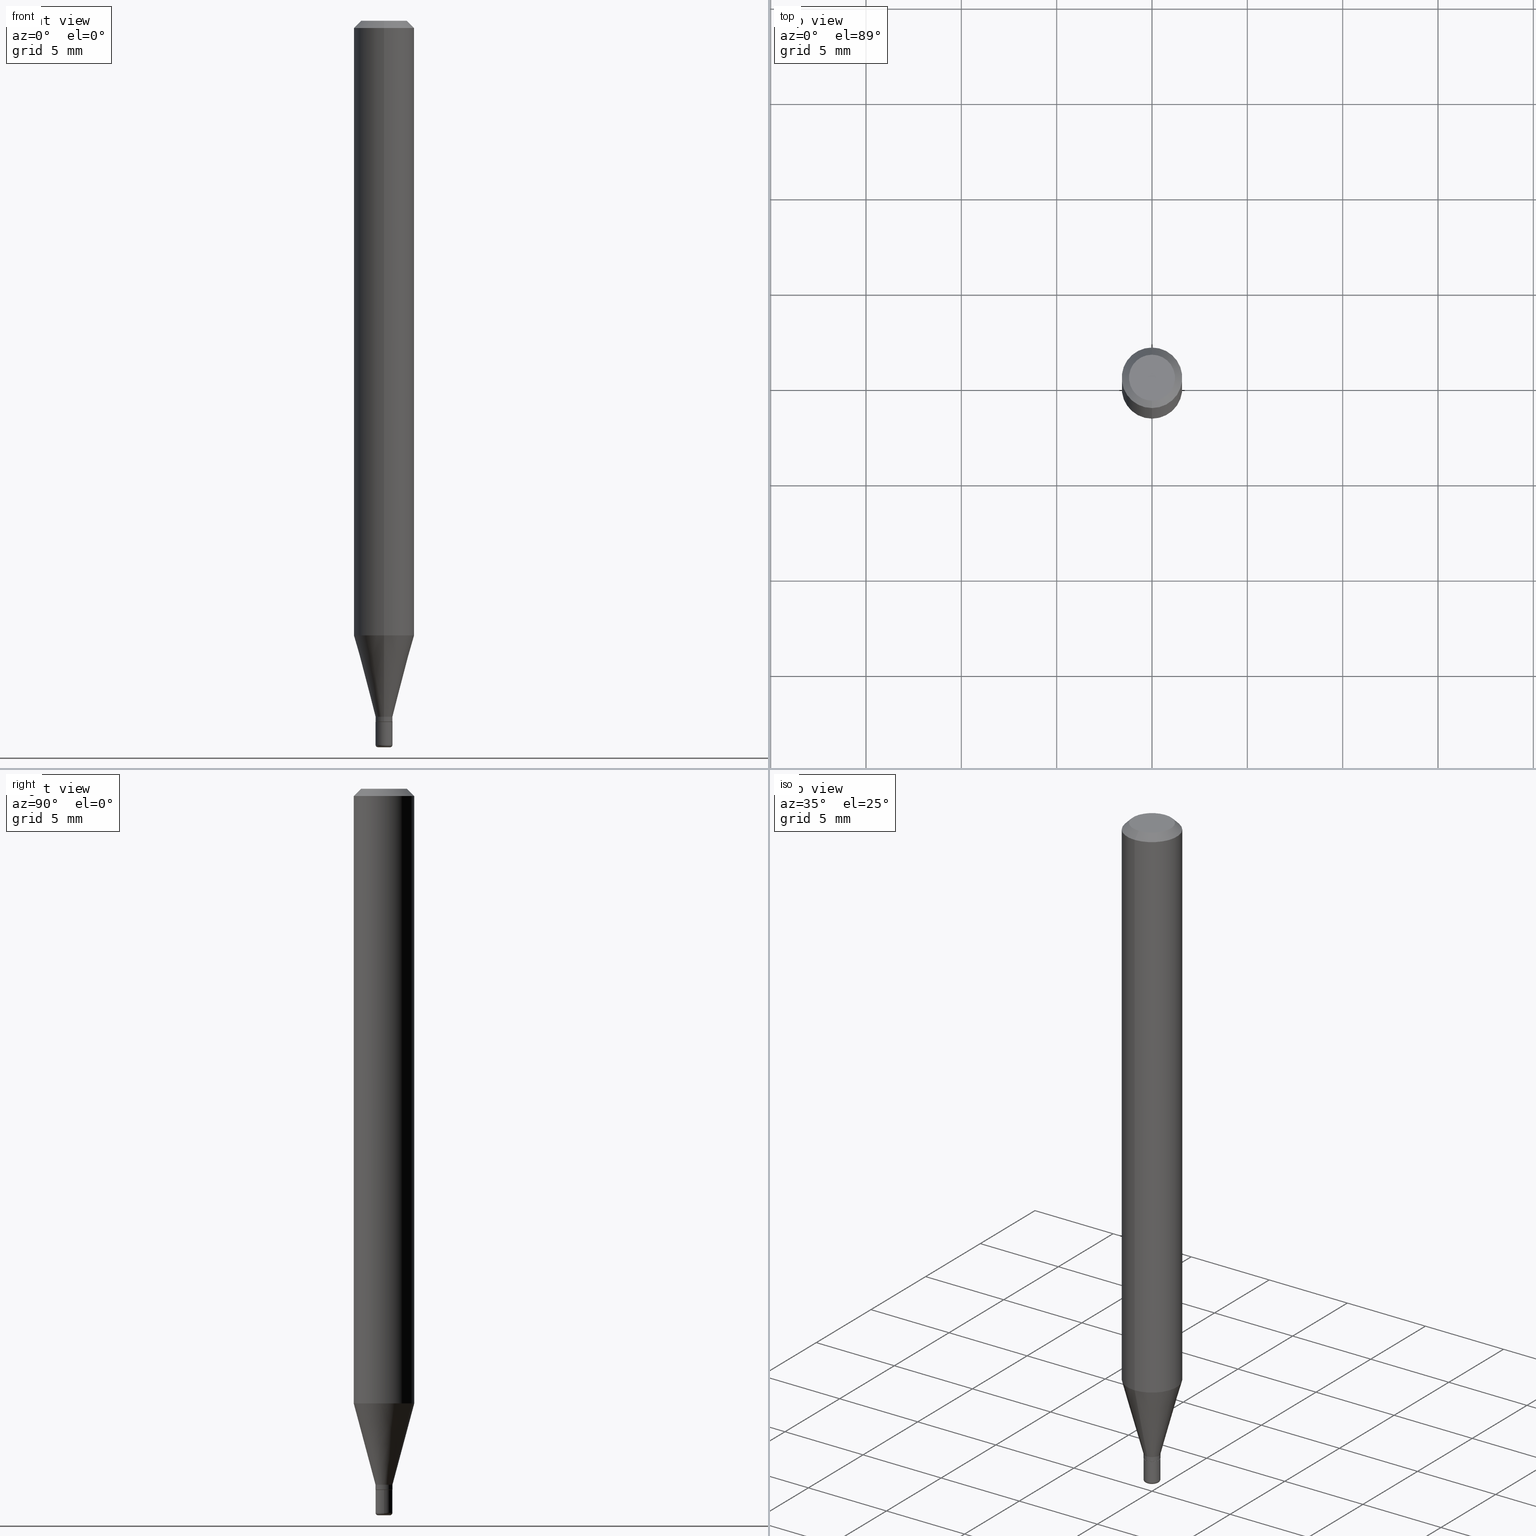
[diagram: canonical four-view strip — front | top / right | iso, engineering-drawing reading convention]
A machine part, canonical four-view strip (front | top / right | iso — engineering-drawing reading convention). The complete STEP part file that produces these views, byte-faithful:
ISO-10303-21;
HEADER;
FILE_DESCRIPTION (( 'STEP AP203' ),
    '1' );
FILE_NAME ('08994.STEP',
    '2024-02-29T21:07:08',
    ( '' ),
    ( '' ),
    'SwSTEP 2.0',
    'SolidWorks 2023',
    '' );
FILE_SCHEMA (( 'CONFIG_CONTROL_DESIGN' ));
ENDSEC;

DATA;
#1 = AXIS2_PLACEMENT_3D ( 'NONE', #284, #75, #194 ) ;
#2 = ORIENTED_EDGE ( 'NONE', *, *, #25, .T. ) ;
#3 = EDGE_CURVE ( 'NONE', #441, #167, #474, .T. ) ;
#4 = ORIENTED_EDGE ( 'NONE', *, *, #396, .F. ) ;
#5 =( CONVERSION_BASED_UNIT ( 'INCH', #364 ) LENGTH_UNIT ( ) NAMED_UNIT ( #6 ) );
#6 = DIMENSIONAL_EXPONENTS ( 1.000000000000000000, 0.000000000000000000, 0.000000000000000000, 0.000000000000000000, 0.000000000000000000, 0.000000000000000000, 0.000000000000000000 ) ;
#7 = EDGE_LOOP ( 'NONE', ( #378, #285, #254, #458 ) ) ;
#8 = AXIS2_PLACEMENT_3D ( 'NONE', #461, #422, #178 ) ;
#9 = AXIS2_PLACEMENT_3D ( 'NONE', #146, #258, #263 ) ;
#10 = SECURITY_CLASSIFICATION ( '', '', #399 ) ;
#11 = ADVANCED_FACE ( 'NONE', ( #188 ), #185, .F. ) ;
#12 = EDGE_LOOP ( 'NONE', ( #271, #253, #512, #489 ) ) ;
#13 = EDGE_LOOP ( 'NONE', ( #414, #287, #4, #199 ) ) ;
#14 = DIRECTION ( 'NONE',  ( 0.000000000000000000, 0.000000000000000000, 1.000000000000000000 ) ) ;
#15 = VERTEX_POINT ( 'NONE', #351 ) ;
#16 = APPROVAL ( #157, 'UNSPECIFIED' ) ;
#17 = DIRECTION ( 'NONE',  ( -6.982962677686266711E-15, -1.000000000000000000, 0.000000000000000000 ) ) ;
#18 = DIRECTION ( 'NONE',  ( -2.445372536736762504E-29, 3.491619202172534245E-15, 1.000000000000000000 ) ) ;
#19 = DIRECTION ( 'NONE',  ( -2.445372536736762504E-29, 3.491619202172534245E-15, 1.000000000000000000 ) ) ;
#20 = DIRECTION ( 'NONE',  ( 1.000000000000000000, -6.982962677686248567E-15, 0.000000000000000000 ) ) ;
#21 = CIRCLE ( 'NONE', #496, 0.01700000000000009143 ) ;
#22 = DIRECTION ( 'NONE',  ( -4.851104656540966641E-15, -0.7071067811865503483, -0.7071067811865446862 ) ) ;
#23 = FACE_OUTER_BOUND ( 'NONE', #89, .T. ) ;
#24 = CC_DESIGN_PERSON_AND_ORGANIZATION_ASSIGNMENT ( #195, #106, ( #497 ) ) ;
#25 = EDGE_CURVE ( 'NONE', #217, #164, #339, .T. ) ;
#26 = CALENDAR_DATE ( 2024, 29, 2 ) ;
#27 = CARTESIAN_POINT ( 'NONE',  ( 3.539676746926463991E-29, -5.054118795144743743E-15, -1.447500000000000009 ) ) ;
#28 = PERSON_AND_ORGANIZATION ( #328, #514 ) ;
#29 = DIRECTION ( 'NONE',  ( -2.445372536736762504E-29, 3.491619202172534245E-15, 1.000000000000000000 ) ) ;
#30 = CARTESIAN_POINT ( 'NONE',  ( 0.01250000000000000069, -5.307051635041582264E-15, -1.495000000000000107 ) ) ;
#31 = APPROVAL_DATE_TIME ( #477, #367 ) ;
#32 = DIRECTION ( 'NONE',  ( -6.982962677686265922E-15, -1.000000000000000000, 4.370956789862821150E-15 ) ) ;
#33 = ADVANCED_FACE ( 'NONE', ( #144 ), #313, .T. ) ;
#34 = DIRECTION ( 'NONE',  ( -6.982962677686266711E-15, -1.000000000000000000, 3.491481338843145583E-15 ) ) ;
#35 = APPROVAL_DATE_TIME ( #148, #123 ) ;
#36 = ORIENTED_EDGE ( 'NONE', *, *, #516, .T. ) ;
#37 = DIRECTION ( 'NONE',  ( -2.438088387897960049E-29, 3.491481338843145188E-15, 1.000000000000000000 ) ) ;
#38 = CARTESIAN_POINT ( 'NONE',  ( 0.000000000000000000, 0.000000000000000000, 0.000000000000000000 ) ) ;
#39 = ORIENTED_EDGE ( 'NONE', *, *, #257, .T. ) ;
#40 = AXIS2_PLACEMENT_3D ( 'NONE', #52, #55, #139 ) ;
#41 = AXIS2_PLACEMENT_3D ( 'NONE', #147, #426, #98 ) ;
#42 = CIRCLE ( 'NONE', #47, 0.04750000000000000749 ) ;
#43 = ORIENTED_EDGE ( 'NONE', *, *, #348, .T. ) ;
#44 = LOCAL_TIME ( 16, 7, 8.000000000000000000, #115 ) ;
#45 = ORIENTED_EDGE ( 'NONE', *, *, #78, .T. ) ;
#46 = ORIENTED_EDGE ( 'NONE', *, *, #228, .F. ) ;
#47 = AXIS2_PLACEMENT_3D ( 'NONE', #407, #402, #270 ) ;
#48 = VERTEX_POINT ( 'NONE', #467 ) ;
#49 = ORIENTED_EDGE ( 'NONE', *, *, #136, .F. ) ;
#50 = EDGE_CURVE ( 'NONE', #217, #48, #411, .T. ) ;
#51 = CARTESIAN_POINT ( 'NONE',  ( 4.440892098500625669E-16, 0.06250000000000000000, -2.182262001357833903E-16 ) ) ;
#52 = CARTESIAN_POINT ( 'NONE',  ( -6.680546193665781119E-45, 9.538801561062534046E-31, 2.731913478745722715E-16 ) ) ;
#53 = CARTESIAN_POINT ( 'NONE',  ( 3.668058805105071256E-31, -5.237428803258697805E-17, -0.01499999999999970281 ) ) ;
#54 = CC_DESIGN_SECURITY_CLASSIFICATION ( #10, ( #412 ) ) ;
#55 = DIRECTION ( 'NONE',  ( -2.445372536736762504E-29, 3.491619202172534245E-15, 1.000000000000000000 ) ) ;
#56 = CARTESIAN_POINT ( 'NONE',  ( -0.01250000000000000069, -5.130946759600490933E-15, -1.495000000000000107 ) ) ;
#57 = DIRECTION ( 'NONE',  ( -6.982962677686266711E-15, -1.000000000000000000, 0.000000000000000000 ) ) ;
#58 = ADVANCED_FACE ( 'NONE', ( #386 ), #74, .T. ) ;
#59 = DIRECTION ( 'NONE',  ( -2.445372536736762504E-29, 3.491619202172534245E-15, 1.000000000000000000 ) ) ;
#60 = COORDINATED_UNIVERSAL_TIME_OFFSET ( 5, 0, .BEHIND. ) ;
#61 = AXIS2_PLACEMENT_3D ( 'NONE', #143, #460, #57 ) ;
#62 = FACE_OUTER_BOUND ( 'NONE', #7, .T. ) ;
#63 = PRODUCT ( '08994', '08994', '', ( #306 ) ) ;
#64 = CARTESIAN_POINT ( 'NONE',  ( 3.840629472727447874E-16, 0.04750000000000000749, 1.073394357713768884E-16 ) ) ;
#65 = COORDINATED_UNIVERSAL_TIME_OFFSET ( 5, 0, .BEHIND. ) ;
#66 = CARTESIAN_POINT ( 'NONE',  ( 1.243449787580181607E-16, 0.01750000000000009187, -6.110333603801966434E-17 ) ) ;
#67 = CARTESIAN_POINT ( 'NONE',  ( 0.000000000000000000, 0.000000000000000000, 0.000000000000000000 ) ) ;
#68 = PERSON_AND_ORGANIZATION ( #328, #514 ) ;
#69 = ORIENTED_EDGE ( 'NONE', *, *, #81, .F. ) ;
#70 = FACE_OUTER_BOUND ( 'NONE', #116, .T. ) ;
#71 = DIRECTION ( 'NONE',  ( 1.000000000000000000, -6.982962677686288010E-15, 0.000000000000000000 ) ) ;
#72 = DATE_TIME_ROLE ( 'creation_date' ) ;
#73 = CARTESIAN_POINT ( 'NONE',  ( 3.103318880516645580E-29, -4.431066281678338175E-15, -1.269057713659401232 ) ) ;
#74 = CONICAL_SURFACE ( 'NONE', #346, 0.01700000000000009143, 0.7853981633975486432 ) ;
#75 = DIRECTION ( 'NONE',  ( -2.445468806185136597E-29, 3.491481338843145583E-15, 1.000000000000000000 ) ) ;
#76 = ORIENTED_EDGE ( 'NONE', *, *, #482, .F. ) ;
#77 = LOCAL_TIME ( 16, 7, 8.000000000000000000, #444 ) ;
#78 = EDGE_CURVE ( 'NONE', #167, #450, #429, .T. ) ;
#79 = AXIS2_PLACEMENT_3D ( 'NONE', #499, #304, #468 ) ;
#80 = CIRCLE ( 'NONE', #95, 0.01750000000000009187 ) ;
#81 = EDGE_CURVE ( 'NONE', #170, #379, #250, .T. ) ;
#82 = DIRECTION ( 'NONE',  ( -2.445468806185136597E-29, 3.491481338843145583E-15, 1.000000000000000000 ) ) ;
#83 = VERTEX_POINT ( 'NONE', #181 ) ;
#84 = CC_DESIGN_DATE_AND_TIME_ASSIGNMENT ( #275, #355, ( #10 ) ) ;
#85 = EDGE_CURVE ( 'NONE', #86, #15, #21, .T. ) ;
#86 = VERTEX_POINT ( 'NONE', #343 ) ;
#87 =( GEOMETRIC_REPRESENTATION_CONTEXT ( 3 ) GLOBAL_UNCERTAINTY_ASSIGNED_CONTEXT ( ( #486 ) ) GLOBAL_UNIT_ASSIGNED_CONTEXT ( ( #5, #314, #322 ) ) REPRESENTATION_CONTEXT ( 'NONE', 'WORKASPACE' ) );
#88 = ORIENTED_EDGE ( 'NONE', *, *, #251, .F. ) ;
#89 = EDGE_LOOP ( 'NONE', ( #173, #448, #39, #49 ) ) ;
#90 = CARTESIAN_POINT ( 'NONE',  ( 3.582686580359767159E-29, -5.359686688179454114E-15, -1.500000000000000444 ) ) ;
#91 = CIRCLE ( 'NONE', #410, 0.01700000000000009143 ) ;
#92 = ORIENTED_EDGE ( 'NONE', *, *, #409, .T. ) ;
#93 = AXIS2_PLACEMENT_3D ( 'NONE', #156, #235, #436 ) ;
#94 = VERTEX_POINT ( 'NONE', #64 ) ;
#95 = AXIS2_PLACEMENT_3D ( 'NONE', #466, #104, #260 ) ;
#96 = DESIGN_CONTEXT ( 'detailed design', #286, 'design' ) ;
#97 = EDGE_CURVE ( 'NONE', #246, #167, #266, .T. ) ;
#98 = DIRECTION ( 'NONE',  ( -6.982962677686265922E-15, -1.000000000000000000, 4.370956789862821150E-15 ) ) ;
#99 = FACE_OUTER_BOUND ( 'NONE', #359, .T. ) ;
#100 = CIRCLE ( 'NONE', #315, 0.01750000000000018208 ) ;
#101 = FACE_OUTER_BOUND ( 'NONE', #12, .T. ) ;
#102 = CIRCLE ( 'NONE', #79, 0.01750000000000009187 ) ;
#103 = ADVANCED_FACE ( 'NONE', ( #23 ), #105, .T. ) ;
#104 = DIRECTION ( 'NONE',  ( -2.445372536736762504E-29, 3.491619202172534245E-15, 1.000000000000000000 ) ) ;
#105 = CYLINDRICAL_SURFACE ( 'NONE', #281, 0.06250000000000000000 ) ;
#106 = PERSON_AND_ORGANIZATION_ROLE ( 'creator' ) ;
#107 = LINE ( 'NONE', #334, #201 ) ;
#108 = CARTESIAN_POINT ( 'NONE',  ( 3.539676746926463991E-29, -5.054118795144743743E-15, -1.447500000000000009 ) ) ;
#109 = APPROVAL_DATE_TIME ( #239, #16 ) ;
#110 = AXIS2_PLACEMENT_3D ( 'NONE', #428, #345, #234 ) ;
#111 = LINE ( 'NONE', #311, #495 ) ;
#112 = FACE_OUTER_BOUND ( 'NONE', #336, .T. ) ;
#113 = PERSON_AND_ORGANIZATION_ROLE ( 'creator' ) ;
#114 = CARTESIAN_POINT ( 'NONE',  ( 3.539676746926463991E-29, -5.054118795144743743E-15, -1.447500000000000009 ) ) ;
#115 = COORDINATED_UNIVERSAL_TIME_OFFSET ( 5, 0, .BEHIND. ) ;
#116 = EDGE_LOOP ( 'NONE', ( #446, #92, #125, #76 ) ) ;
#117 = CARTESIAN_POINT ( 'NONE',  ( 3.655975865246779683E-29, -5.219764601570503930E-15, -1.495000000000000329 ) ) ;
#118 = DIRECTION ( 'NONE',  ( -2.445468806185136597E-29, 3.491481338843145583E-15, 1.000000000000000000 ) ) ;
#119 = PERSON_AND_ORGANIZATION ( #328, #514 ) ;
#120 = CIRCLE ( 'NONE', #169, 0.01750000000000018208 ) ;
#121 = CARTESIAN_POINT ( 'NONE',  ( 3.655975865246779683E-29, -5.219764601570503930E-15, -1.495000000000000329 ) ) ;
#122 = ORIENTED_EDGE ( 'NONE', *, *, #85, .F. ) ;
#123 = APPROVAL ( #229, 'UNSPECIFIED' ) ;
#124 = EDGE_CURVE ( 'NONE', #94, #450, #227, .T. ) ;
#125 = ORIENTED_EDGE ( 'NONE', *, *, #473, .T. ) ;
#126 = CC_DESIGN_DATE_AND_TIME_ASSIGNMENT ( #505, #72, ( #497 ) ) ;
#127 = ADVANCED_FACE ( 'NONE', ( #465 ), #475, .F. ) ;
#128 = ORIENTED_EDGE ( 'NONE', *, *, #264, .T. ) ;
#129 = CARTESIAN_POINT ( 'NONE',  ( -1.222018468594751745E-16, -0.01750000000000511216, -1.437000000000000277 ) ) ;
#130 = CC_DESIGN_APPROVAL ( #123, ( #412 ) ) ;
#131 = ORIENTED_EDGE ( 'NONE', *, *, #209, .T. ) ;
#132 = FACE_OUTER_BOUND ( 'NONE', #327, .T. ) ;
#133 = ORIENTED_EDGE ( 'NONE', *, *, #165, .F. ) ;
#134 = CONICAL_SURFACE ( 'NONE', #241, 0.01700000000000009143, 0.7853981633975486432 ) ;
#135 = ORIENTED_EDGE ( 'NONE', *, *, #136, .T. ) ;
#136 = EDGE_CURVE ( 'NONE', #450, #248, #324, .T. ) ;
#137 = DIRECTION ( 'NONE',  ( 2.445372536736761943E-29, -3.491619202172534245E-15, -1.000000000000000000 ) ) ;
#138 = FACE_OUTER_BOUND ( 'NONE', #236, .T. ) ;
#139 = DIRECTION ( 'NONE',  ( -6.982962677686265133E-15, -1.000000000000000000, 3.491619202172534245E-15 ) ) ;
#140 = CARTESIAN_POINT ( 'NONE',  ( 4.364351673553919652E-16, 0.06249999999999995143, -0.01499999999999992138 ) ) ;
#141 = ADVANCED_FACE ( 'NONE', ( #476 ), #268, .T. ) ;
#142 = AXIS2_PLACEMENT_3D ( 'NONE', #300, #421, #222 ) ;
#143 = CARTESIAN_POINT ( 'NONE',  ( 3.538454060658095632E-29, -5.052372985543657643E-15, -1.447000000000000064 ) ) ;
#144 = FACE_OUTER_BOUND ( 'NONE', #206, .T. ) ;
#145 = COORDINATED_UNIVERSAL_TIME_OFFSET ( 5, 0, .BEHIND. ) ;
#146 = CARTESIAN_POINT ( 'NONE',  ( 3.668058805105071256E-31, -5.237428803258697805E-17, -0.01499999999999970281 ) ) ;
#147 = CARTESIAN_POINT ( 'NONE',  ( 3.103318880516645580E-29, -4.431066281678338175E-15, -1.269057713659401232 ) ) ;
#148 = DATE_AND_TIME ( #349, #384 ) ;
#149 = ADVANCED_FACE ( 'NONE', ( #112 ), #510, .T. ) ;
#150 = LINE ( 'NONE', #298, #226 ) ;
#151 = EDGE_CURVE ( 'NONE', #15, #86, #91, .T. ) ;
#152 = DIRECTION ( 'NONE',  ( -2.445468806185136597E-29, 3.491481338843145583E-15, 1.000000000000000000 ) ) ;
#153 = AXIS2_PLACEMENT_3D ( 'NONE', #53, #223, #255 ) ;
#154 = CARTESIAN_POINT ( 'NONE',  ( -1.187103655206317729E-16, -0.01700000000000514641, -1.447500000000000009 ) ) ;
#155 = LOCAL_TIME ( 16, 7, 8.000000000000000000, #65 ) ;
#156 = CARTESIAN_POINT ( 'NONE',  ( 1.222018468595450626E-16, 0.01749999999999494668, -1.447500000000000009 ) ) ;
#157 = APPROVAL_STATUS ( 'not_yet_approved' ) ;
#158 = EDGE_LOOP ( 'NONE', ( #128, #488, #176, #247 ) ) ;
#159 = DIRECTION ( 'NONE',  ( -4.937700262165042658E-15, -0.7071067811866159625, 0.7071067811864789610 ) ) ;
#160 = DIRECTION ( 'NONE',  ( -2.445468806185136877E-29, 3.491481338843145188E-15, 1.000000000000000000 ) ) ;
#161 = PERSON_AND_ORGANIZATION ( #328, #514 ) ;
#162 = LINE ( 'NONE', #154, #197 ) ;
#163 = CARTESIAN_POINT ( 'NONE',  ( -0.01250000000000000243, -5.121911894553596325E-15, -1.500000000000000444 ) ) ;
#164 = VERTEX_POINT ( 'NONE', #273 ) ;
#165 = EDGE_CURVE ( 'NONE', #94, #210, #42, .T. ) ;
#166 = EDGE_CURVE ( 'NONE', #48, #452, #120, .T. ) ;
#167 = VERTEX_POINT ( 'NONE', #398 ) ;
#168 = AXIS2_PLACEMENT_3D ( 'NONE', #341, #137, #299 ) ;
#169 = AXIS2_PLACEMENT_3D ( 'NONE', #121, #118, #71 ) ;
#170 = VERTEX_POINT ( 'NONE', #358 ) ;
#171 = CARTESIAN_POINT ( 'NONE',  ( 0.01750000000000018208, -5.341966448430015491E-15, -1.495000000000000329 ) ) ;
#172 = APPROVAL_PERSON_ORGANIZATION ( #68, #367, #440 ) ;
#173 = ORIENTED_EDGE ( 'NONE', *, *, #78, .F. ) ;
#174 = ORIENTED_EDGE ( 'NONE', *, *, #251, .T. ) ;
#175 = ADVANCED_FACE ( 'NONE', ( #242 ), #365, .T. ) ;
#176 = ORIENTED_EDGE ( 'NONE', *, *, #493, .F. ) ;
#177 = AXIS2_PLACEMENT_3D ( 'NONE', #387, #19, #183 ) ;
#178 = DIRECTION ( 'NONE',  ( 1.000000000000000000, -6.982962677686292743E-15, 0.000000000000000000 ) ) ;
#179 = DIRECTION ( 'NONE',  ( -6.982962677686265133E-15, -1.000000000000000000, 0.000000000000000000 ) ) ;
#180 = PRODUCT_DEFINITION_SHAPE ( 'NONE', 'NONE',  #497 ) ;
#181 = CARTESIAN_POINT ( 'NONE',  ( -1.222018468594751745E-16, -0.01750000000000511216, -1.437000000000000277 ) ) ;
#182 = AXIS2_PLACEMENT_3D ( 'NONE', #73, #513, #32 ) ;
#183 = DIRECTION ( 'NONE',  ( -6.982962677686266711E-15, -1.000000000000000000, 0.000000000000000000 ) ) ;
#184 = AXIS2_PLACEMENT_3D ( 'NONE', #393, #498, #435 ) ;
#185 = PLANE ( 'NONE',  #168 ) ;
#186 = APPLICATION_PROTOCOL_DEFINITION ( 'international standard', 'config_control_design', 1994, #286 ) ;
#187 = CYLINDRICAL_SURFACE ( 'NONE', #338, 0.01750000000000009187 ) ;
#188 = FACE_OUTER_BOUND ( 'NONE', #451, .T. ) ;
#189 = SHAPE_DEFINITION_REPRESENTATION ( #180, #362 ) ;
#190 = DIRECTION ( 'NONE',  ( -2.445468806185136597E-29, 3.491481338843145583E-15, 1.000000000000000000 ) ) ;
#191 = DIRECTION ( 'NONE',  ( 1.000000000000000000, -6.982962677686276177E-15, 0.000000000000000000 ) ) ;
#192 = PERSON_AND_ORGANIZATION_ROLE ( 'design_supplier' ) ;
#193 = CARTESIAN_POINT ( 'NONE',  ( -4.364351673553912750E-16, -0.06250000000000005551, -0.01499999999999948597 ) ) ;
#194 = DIRECTION ( 'NONE',  ( 1.000000000000000000, -6.982962677686288799E-15, 4.883557194083120748E-29 ) ) ;
#195 = PERSON_AND_ORGANIZATION ( #328, #514 ) ;
#196 = CARTESIAN_POINT ( 'NONE',  ( 1.207922650792530567E-16, 0.01699999999999503644, -1.447500000000000009 ) ) ;
#197 = VECTOR ( 'NONE', #159, 39.37007874015748854 ) ;
#198 = CARTESIAN_POINT ( 'NONE',  ( -1.222018468594753224E-16, -0.01750000000000520237, -1.447000000000000064 ) ) ;
#199 = ORIENTED_EDGE ( 'NONE', *, *, #424, .F. ) ;
#200 =( LENGTH_UNIT ( ) NAMED_UNIT ( * ) SI_UNIT ( $, .METRE. ) );
#201 = VECTOR ( 'NONE', #376, 39.37007874015748143 ) ;
#202 = DIRECTION ( 'NONE',  ( 1.000000000000000000, -6.982962677686266711E-15, 4.876176775795935232E-29 ) ) ;
#203 = ADVANCED_FACE ( 'NONE', ( #238 ), #479, .T. ) ;
#204 = ORIENTED_EDGE ( 'NONE', *, *, #326, .F. ) ;
#205 = DIRECTION ( 'NONE',  ( -6.982962677686265133E-15, -1.000000000000000000, 0.000000000000000000 ) ) ;
#206 = EDGE_LOOP ( 'NONE', ( #88, #240, #43, #518 ) ) ;
#207 = AXIS2_PLACEMENT_3D ( 'NONE', #38, #243, #508 ) ;
#208 = VECTOR ( 'NONE', #432, 39.37007874015748854 ) ;
#209 = EDGE_CURVE ( 'NONE', #164, #452, #340, .T. ) ;
#210 = VERTEX_POINT ( 'NONE', #484 ) ;
#211 = CARTESIAN_POINT ( 'NONE',  ( 4.440892098500937762E-16, 0.06249999999999993755, -0.01499999999999992138 ) ) ;
#212 = VERTEX_POINT ( 'NONE', #198 ) ;
#213 = AXIS2_PLACEMENT_3D ( 'NONE', #30, #34, #191 ) ;
#214 = ORIENTED_EDGE ( 'NONE', *, *, #151, .T. ) ;
#215 = DIRECTION ( 'NONE',  ( -2.445468806185136597E-29, 3.491481338843145583E-15, 1.000000000000000000 ) ) ;
#216 = EDGE_CURVE ( 'NONE', #48, #379, #323, .T. ) ;
#217 = VERTEX_POINT ( 'NONE', #163 ) ;
#218 = EDGE_LOOP ( 'NONE', ( #337, #214, #36, #317 ) ) ;
#219 = MANIFOLD_SOLID_BREP ( 'Body-Move/Copy2[1]', #403 ) ;
#220 = CARTESIAN_POINT ( 'NONE',  ( 0.000000000000000000, 0.000000000000000000, 0.000000000000000000 ) ) ;
#221 = ADVANCED_FACE ( 'NONE', ( #443 ), #430, .T. ) ;
#222 = DIRECTION ( 'NONE',  ( -6.982962677686266711E-15, -1.000000000000000000, 3.491619202172533851E-15 ) ) ;
#223 = DIRECTION ( 'NONE',  ( 2.445372536736762504E-29, -3.491619202172534245E-15, -1.000000000000000000 ) ) ;
#224 = DIRECTION ( 'NONE',  ( -2.445372536736761943E-29, 3.491619202172534245E-15, 1.000000000000000000 ) ) ;
#225 = DIRECTION ( 'NONE',  ( -2.445372536736762504E-29, 3.491619202172534245E-15, 1.000000000000000000 ) ) ;
#226 = VECTOR ( 'NONE', #385, 39.37007874015748143 ) ;
#227 = LINE ( 'NONE', #140, #252 ) ;
#228 = EDGE_CURVE ( 'NONE', #415, #246, #361, .T. ) ;
#229 = APPROVAL_STATUS ( 'not_yet_approved' ) ;
#230 = CIRCLE ( 'NONE', #184, 0.01750000000000000167 ) ;
#231 = DIRECTION ( 'NONE',  ( -2.445372536736762504E-29, 3.491619202172534245E-15, 1.000000000000000000 ) ) ;
#232 = EDGE_CURVE ( 'NONE', #210, #248, #111, .T. ) ;
#233 = PERSON_AND_ORGANIZATION ( #328, #514 ) ;
#234 = DIRECTION ( 'NONE',  ( -6.982962677686265922E-15, -1.000000000000000000, 3.483106191921935554E-15 ) ) ;
#235 = DIRECTION ( 'NONE',  ( 2.438088387897960049E-29, -3.491481338843145188E-15, -1.000000000000000000 ) ) ;
#236 = EDGE_LOOP ( 'NONE', ( #122, #437 ) ) ;
#237 = DIRECTION ( 'NONE',  ( -1.807323732225323828E-15, -0.2588190451025172978, 0.9659258262890690894 ) ) ;
#238 = FACE_OUTER_BOUND ( 'NONE', #478, .T. ) ;
#239 = DATE_AND_TIME ( #471, #44 ) ;
#240 = ORIENTED_EDGE ( 'NONE', *, *, #232, .T. ) ;
#241 = AXIS2_PLACEMENT_3D ( 'NONE', #27, #225, #179 ) ;
#242 = FACE_OUTER_BOUND ( 'NONE', #363, .T. ) ;
#243 = DIRECTION ( 'NONE',  ( -2.445468806185136597E-29, 3.491481338843145583E-15, 1.000000000000000000 ) ) ;
#244 = ORIENTED_EDGE ( 'NONE', *, *, #264, .F. ) ;
#245 = LOCAL_TIME ( 16, 7, 8.000000000000000000, #145 ) ;
#246 = VERTEX_POINT ( 'NONE', #507 ) ;
#247 = ORIENTED_EDGE ( 'NONE', *, *, #209, .F. ) ;
#248 = VERTEX_POINT ( 'NONE', #193 ) ;
#249 = DIRECTION ( 'NONE',  ( -2.445468806185136877E-29, 3.491481338843145188E-15, 1.000000000000000000 ) ) ;
#250 = CIRCLE ( 'NONE', #485, 0.01750000000000000167 ) ;
#251 = EDGE_CURVE ( 'NONE', #210, #94, #390, .T. ) ;
#252 = VECTOR ( 'NONE', #301, 39.37007874015748143 ) ;
#253 = ORIENTED_EDGE ( 'NONE', *, *, #97, .T. ) ;
#254 = ORIENTED_EDGE ( 'NONE', *, *, #357, .F. ) ;
#255 = DIRECTION ( 'NONE',  ( 6.982962677686265922E-15, 1.000000000000000000, -3.483106191921935554E-15 ) ) ;
#256 = CC_DESIGN_PERSON_AND_ORGANIZATION_ASSIGNMENT ( #511, #192, ( #412 ) ) ;
#257 = EDGE_CURVE ( 'NONE', #441, #248, #150, .T. ) ;
#258 = DIRECTION ( 'NONE',  ( 2.445372536736762504E-29, -3.491619202172534245E-15, -1.000000000000000000 ) ) ;
#259 = PLANE ( 'NONE',  #416 ) ;
#260 = DIRECTION ( 'NONE',  ( -6.982962677686266711E-15, -1.000000000000000000, 0.000000000000000000 ) ) ;
#261 = CARTESIAN_POINT ( 'NONE',  ( 1.243449787580533143E-16, 0.01749999999999507505, -1.437000000000000277 ) ) ;
#262 = CALENDAR_DATE ( 2024, 29, 2 ) ;
#263 = DIRECTION ( 'NONE',  ( 6.982962677686265922E-15, 1.000000000000000000, -3.483106191921935554E-15 ) ) ;
#264 = EDGE_CURVE ( 'NONE', #164, #217, #302, .T. ) ;
#265 = AXIS2_PLACEMENT_3D ( 'NONE', #319, #152, #312 ) ;
#266 = LINE ( 'NONE', #261, #208 ) ;
#267 = APPROVAL_STATUS ( 'not_yet_approved' ) ;
#268 = TOROIDAL_SURFACE ( 'NONE', #1, 0.01250000000000000069, 0.005000000000000179648 ) ;
#269 = CARTESIAN_POINT ( 'NONE',  ( 3.538454060658095632E-29, -5.052372985543657643E-15, -1.447000000000000064 ) ) ;
#270 = DIRECTION ( 'NONE',  ( -6.982962677686265133E-15, -1.000000000000000000, 3.491619202172534245E-15 ) ) ;
#271 = ORIENTED_EDGE ( 'NONE', *, *, #396, .T. ) ;
#272 = CARTESIAN_POINT ( 'NONE',  ( 0.01750000000000009187, -1.222018468595103035E-16, 8.533309357642931078E-31 ) ) ;
#273 = CARTESIAN_POINT ( 'NONE',  ( 0.01250000000000000243, -5.324509041735798088E-15, -1.500000000000000444 ) ) ;
#274 = APPLICATION_CONTEXT ( 'configuration controlled 3d designs of mechanical parts and assemblies' ) ;
#275 = DATE_AND_TIME ( #26, #77 ) ;
#276 = ORIENTED_EDGE ( 'NONE', *, *, #25, .F. ) ;
#277 = ADVANCED_FACE ( 'NONE', ( #356 ), #187, .T. ) ;
#278 = CARTESIAN_POINT ( 'NONE',  ( 3.514000335290727898E-29, -5.017456793521932494E-15, -1.437000000000000277 ) ) ;
#279 = DIRECTION ( 'NONE',  ( -6.982962677686265922E-15, -1.000000000000000000, 3.491619202172534245E-15 ) ) ;
#280 = ORIENTED_EDGE ( 'NONE', *, *, #424, .T. ) ;
#281 = AXIS2_PLACEMENT_3D ( 'NONE', #220, #59, #459 ) ;
#282 = PLANE ( 'NONE',  #419 ) ;
#283 = AXIS2_PLACEMENT_3D ( 'NONE', #344, #14, #303 ) ;
#284 = CARTESIAN_POINT ( 'NONE',  ( 3.655975865246779122E-29, -5.219764601570503141E-15, -1.495000000000000107 ) ) ;
#285 = ORIENTED_EDGE ( 'NONE', *, *, #506, .T. ) ;
#286 = APPLICATION_CONTEXT ( 'configuration controlled 3d designs of mechanical parts and assemblies' ) ;
#287 = ORIENTED_EDGE ( 'NONE', *, *, #228, .T. ) ;
#288 = APPROVAL_PERSON_ORGANIZATION ( #480, #123, #352 ) ;
#289 = ORIENTED_EDGE ( 'NONE', *, *, #81, .T. ) ;
#290 = CC_DESIGN_APPROVAL ( #16, ( #10 ) ) ;
#291 = ORIENTED_EDGE ( 'NONE', *, *, #166, .T. ) ;
#292 = EDGE_CURVE ( 'NONE', #415, #212, #456, .T. ) ;
#293 = ORIENTED_EDGE ( 'NONE', *, *, #348, .F. ) ;
#294 = AXIS2_PLACEMENT_3D ( 'NONE', #269, #397, #17 ) ;
#295 = CIRCLE ( 'NONE', #110, 0.06250000000000000000 ) ;
#296 = EDGE_LOOP ( 'NONE', ( #46, #372, #280, #491 ) ) ;
#297 = DIRECTION ( 'NONE',  ( -2.445372536736762504E-29, 3.491619202172534245E-15, 1.000000000000000000 ) ) ;
#298 = CARTESIAN_POINT ( 'NONE',  ( -4.364351673553916201E-16, -0.06250000000000000000, 2.182262001357833903E-16 ) ) ;
#299 = DIRECTION ( 'NONE',  ( 6.982962677686265922E-15, 1.000000000000000000, -3.491619202172534245E-15 ) ) ;
#300 = CARTESIAN_POINT ( 'NONE',  ( 0.000000000000000000, 0.000000000000000000, 0.000000000000000000 ) ) ;
#301 = DIRECTION ( 'NONE',  ( 4.937700262164550409E-15, 0.7071067811865454633, -0.7071067811865495711 ) ) ;
#302 = CIRCLE ( 'NONE', #377, 0.01250000000000000243 ) ;
#303 = DIRECTION ( 'NONE',  ( 1.000000000000000000, 0.000000000000000000, 0.000000000000000000 ) ) ;
#304 = DIRECTION ( 'NONE',  ( -2.445372536736762504E-29, 3.491619202172534245E-15, 1.000000000000000000 ) ) ;
#305 = CARTESIAN_POINT ( 'NONE',  ( 3.539816096952985403E-29, -5.053919237975453202E-15, -1.447500000000000009 ) ) ;
#306 = MECHANICAL_CONTEXT ( 'NONE', #274, 'mechanical' ) ;
#307 = ADVANCED_FACE ( 'NONE', ( #138 ), #259, .F. ) ;
#308 = FACE_OUTER_BOUND ( 'NONE', #296, .T. ) ;
#309 = DIRECTION ( 'NONE',  ( -1.000000000000000000, 7.105427357601058657E-15, 0.000000000000000000 ) ) ;
#310 = APPROVAL_ROLE ( '' ) ;
#311 = CARTESIAN_POINT ( 'NONE',  ( -4.287811248607203282E-16, -0.06250000000000005551, -0.01499999999999948597 ) ) ;
#312 = DIRECTION ( 'NONE',  ( 1.000000000000000000, -6.982962677686288799E-15, 4.883557194083120748E-29 ) ) ;
#313 = CONICAL_SURFACE ( 'NONE', #153, 0.06250000000000000000, 0.7853981633974488341 ) ;
#314 =( NAMED_UNIT ( * ) PLANE_ANGLE_UNIT ( ) SI_UNIT ( $, .RADIAN. ) );
#315 = AXIS2_PLACEMENT_3D ( 'NONE', #117, #215, #331 ) ;
#316 = DIRECTION ( 'NONE',  ( -6.982962677686265922E-15, -1.000000000000000000, 3.483106191921935554E-15 ) ) ;
#317 = ORIENTED_EDGE ( 'NONE', *, *, #292, .F. ) ;
#318 = CONICAL_SURFACE ( 'NONE', #469, 0.01750000000000009187, 0.2617993877991494078 ) ;
#319 = CARTESIAN_POINT ( 'NONE',  ( 3.655975865246779122E-29, -5.219764601570503141E-15, -1.495000000000000107 ) ) ;
#320 = CALENDAR_DATE ( 2024, 29, 2 ) ;
#321 = ORIENTED_EDGE ( 'NONE', *, *, #124, .T. ) ;
#322 =( NAMED_UNIT ( * ) SI_UNIT ( $, .STERADIAN. ) SOLID_ANGLE_UNIT ( ) );
#323 = LINE ( 'NONE', #354, #464 ) ;
#324 = CIRCLE ( 'NONE', #433, 0.06250000000000000000 ) ;
#325 = AXIS2_PLACEMENT_3D ( 'NONE', #447, #439, #279 ) ;
#326 = EDGE_CURVE ( 'NONE', #379, #170, #230, .T. ) ;
#327 = EDGE_LOOP ( 'NONE', ( #244, #276 ) ) ;
#328 = PERSON ( 'UNSPECIFIED', 'UNSPECIFIED', 'UNSPECIFIED', ('UNSPECIFIED'), ('UNSPECIFIED'), ('UNSPECIFIED') ) ;
#329 = CIRCLE ( 'NONE', #182, 0.06250000000000000000 ) ;
#330 = ORIENTED_EDGE ( 'NONE', *, *, #487, .T. ) ;
#331 = DIRECTION ( 'NONE',  ( 1.000000000000000000, -6.982962677686288010E-15, 0.000000000000000000 ) ) ;
#332 = CONICAL_SURFACE ( 'NONE', #177, 0.01750000000000009187, 0.2617993877991494078 ) ;
#333 = ORIENTED_EDGE ( 'NONE', *, *, #166, .F. ) ;
#334 = CARTESIAN_POINT ( 'NONE',  ( -1.222018468595103035E-16, -0.01750000000000009187, 6.110333603801966434E-17 ) ) ;
#335 = VECTOR ( 'NONE', #509, 39.37007874015748854 ) ;
#336 = EDGE_LOOP ( 'NONE', ( #417, #494, #69, #454 ) ) ;
#337 = ORIENTED_EDGE ( 'NONE', *, *, #506, .F. ) ;
#338 = AXIS2_PLACEMENT_3D ( 'NONE', #503, #231, #431 ) ;
#339 = CIRCLE ( 'NONE', #8, 0.01250000000000000243 ) ;
#340 = CIRCLE ( 'NONE', #213, 0.005000000000000179648 ) ;
#341 = CARTESIAN_POINT ( 'NONE',  ( 3.316907271900976589E-16, 0.04750000000000000749, -2.925623816590924731E-17 ) ) ;
#342 = CYLINDRICAL_SURFACE ( 'NONE', #142, 0.01750000000000009187 ) ;
#343 = CARTESIAN_POINT ( 'NONE',  ( -1.187103655206317729E-16, -0.01700000000000514641, -1.447500000000000009 ) ) ;
#344 = CARTESIAN_POINT ( 'NONE',  ( 0.000000000000000000, 0.000000000000000000, 0.000000000000000000 ) ) ;
#345 = DIRECTION ( 'NONE',  ( -2.445372536736762504E-29, 3.491619202172534245E-15, 1.000000000000000000 ) ) ;
#346 = AXIS2_PLACEMENT_3D ( 'NONE', #420, #394, #383 ) ;
#347 = CC_DESIGN_PERSON_AND_ORGANIZATION_ASSIGNMENT ( #161, #434, ( #10 ) ) ;
#348 = EDGE_CURVE ( 'NONE', #248, #450, #295, .T. ) ;
#349 = CALENDAR_DATE ( 2024, 29, 2 ) ;
#350 = CARTESIAN_POINT ( 'NONE',  ( -0.01750000000000000167, -5.012496941014960923E-15, -1.447500000000000009 ) ) ;
#351 = CARTESIAN_POINT ( 'NONE',  ( 1.225686219186533087E-16, 0.01699999999999503644, -1.447500000000000009 ) ) ;
#352 = APPROVAL_ROLE ( '' ) ;
#353 = DIRECTION ( 'NONE',  ( -6.982962677686265922E-15, -1.000000000000000000, 3.491619202172534245E-15 ) ) ;
#354 = CARTESIAN_POINT ( 'NONE',  ( -0.01750000000000009187, 1.243449787580181853E-16, -8.608136407946129329E-31 ) ) ;
#355 = DATE_TIME_ROLE ( 'classification_date' ) ;
#356 = FACE_OUTER_BOUND ( 'NONE', #13, .T. ) ;
#357 = EDGE_CURVE ( 'NONE', #212, #415, #483, .T. ) ;
#358 = CARTESIAN_POINT ( 'NONE',  ( 0.01750000000000000167, -5.176121084834963185E-15, -1.447500000000000009 ) ) ;
#359 = EDGE_LOOP ( 'NONE', ( #413, #133, #321, #135 ) ) ;
#360 = LINE ( 'NONE', #129, #427 ) ;
#361 = LINE ( 'NONE', #66, #455 ) ;
#362 = ADVANCED_BREP_SHAPE_REPRESENTATION ( '08994', ( #219, #401, #283 ), #87 ) ;
#363 = EDGE_LOOP ( 'NONE', ( #404, #45, #293, #366 ) ) ;
#364 = LENGTH_MEASURE_WITH_UNIT ( LENGTH_MEASURE( 0.02539999999999999897 ), #200 );
#365 = CYLINDRICAL_SURFACE ( 'NONE', #325, 0.06250000000000000000 ) ;
#366 = ORIENTED_EDGE ( 'NONE', *, *, #257, .F. ) ;
#367 = APPROVAL ( #267, 'UNSPECIFIED' ) ;
#368 = ADVANCED_FACE ( 'NONE', ( #62 ), #134, .T. ) ;
#369 = CLOSED_SHELL ( 'NONE', ( #277, #368, #33, #175, #382, #462, #103, #373, #11, #307, #58, #380 ) ) ;
#370 = CONICAL_SURFACE ( 'NONE', #9, 0.06250000000000000000, 0.7853981633974488341 ) ;
#371 = EDGE_LOOP ( 'NONE', ( #289, #481 ) ) ;
#372 = ORIENTED_EDGE ( 'NONE', *, *, #292, .T. ) ;
#373 = ADVANCED_FACE ( 'NONE', ( #99 ), #370, .T. ) ;
#374 = VECTOR ( 'NONE', #249, 39.37007874015748143 ) ;
#375 = ORIENTED_EDGE ( 'NONE', *, *, #165, .T. ) ;
#376 = DIRECTION ( 'NONE',  ( -2.445372536736762504E-29, 3.491619202172534245E-15, 1.000000000000000000 ) ) ;
#377 = AXIS2_PLACEMENT_3D ( 'NONE', #472, #190, #463 ) ;
#378 = ORIENTED_EDGE ( 'NONE', *, *, #85, .T. ) ;
#379 = VERTEX_POINT ( 'NONE', #350 ) ;
#380 = ADVANCED_FACE ( 'NONE', ( #308 ), #342, .T. ) ;
#381 = ORIENTED_EDGE ( 'NONE', *, *, #50, .F. ) ;
#382 = ADVANCED_FACE ( 'NONE', ( #101 ), #332, .T. ) ;
#383 = DIRECTION ( 'NONE',  ( -6.982962677686265133E-15, -1.000000000000000000, 0.000000000000000000 ) ) ;
#384 = LOCAL_TIME ( 16, 7, 8.000000000000000000, #60 ) ;
#385 = DIRECTION ( 'NONE',  ( -2.445372536736762504E-29, 3.491619202172534245E-15, 1.000000000000000000 ) ) ;
#386 = FACE_OUTER_BOUND ( 'NONE', #218, .T. ) ;
#387 = CARTESIAN_POINT ( 'NONE',  ( 3.514000335290727898E-29, -5.017456793521932494E-15, -1.437000000000000277 ) ) ;
#388 = AXIS2_PLACEMENT_3D ( 'NONE', #67, #82, #202 ) ;
#389 = CARTESIAN_POINT ( 'NONE',  ( 1.243449787580531171E-16, 0.01749999999999497791, -1.447000000000000064 ) ) ;
#390 = CIRCLE ( 'NONE', #40, 0.04750000000000000749 ) ;
#391 = APPLICATION_PROTOCOL_DEFINITION ( 'international standard', 'config_control_design', 1994, #274 ) ;
#392 = CC_DESIGN_APPROVAL ( #367, ( #497 ) ) ;
#393 = CARTESIAN_POINT ( 'NONE',  ( 3.539816096952985403E-29, -5.053919237975453202E-15, -1.447500000000000009 ) ) ;
#394 = DIRECTION ( 'NONE',  ( -2.445372536736762504E-29, 3.491619202172534245E-15, 1.000000000000000000 ) ) ;
#395 = PERSON_AND_ORGANIZATION_ROLE ( 'design_owner' ) ;
#396 = EDGE_CURVE ( 'NONE', #83, #246, #102, .T. ) ;
#397 = DIRECTION ( 'NONE',  ( -2.445372536736762504E-29, 3.491619202172534245E-15, 1.000000000000000000 ) ) ;
#398 = CARTESIAN_POINT ( 'NONE',  ( 4.440892098500933817E-16, 0.06249999999999555217, -1.269057713659401454 ) ) ;
#399 = SECURITY_CLASSIFICATION_LEVEL ( 'unclassified' ) ;
#400 = LINE ( 'NONE', #272, #374 ) ;
#401 = MANIFOLD_SOLID_BREP ( 'Body-Move/Copy2[2]', #369 ) ;
#402 = DIRECTION ( 'NONE',  ( -2.445372536736762504E-29, 3.491619202172534245E-15, 1.000000000000000000 ) ) ;
#403 = CLOSED_SHELL ( 'NONE', ( #141, #149, #127, #203, #221, #449 ) ) ;
#404 = ORIENTED_EDGE ( 'NONE', *, *, #3, .T. ) ;
#405 = DIRECTION ( 'NONE',  ( 1.000000000000000000, -6.982962677686265922E-15, 4.876176775795935793E-29 ) ) ;
#406 = DIRECTION ( 'NONE',  ( -2.445372536736762504E-29, 3.491619202172534245E-15, 1.000000000000000000 ) ) ;
#407 = CARTESIAN_POINT ( 'NONE',  ( -6.680546193665781119E-45, 9.538801561062534046E-31, 2.731913478745722715E-16 ) ) ;
#408 = CC_DESIGN_PERSON_AND_ORGANIZATION_ASSIGNMENT ( #233, #395, ( #63 ) ) ;
#409 = EDGE_CURVE ( 'NONE', #246, #83, #80, .T. ) ;
#410 = AXIS2_PLACEMENT_3D ( 'NONE', #114, #517, #205 ) ;
#411 = CIRCLE ( 'NONE', #445, 0.005000000000000179648 ) ;
#412 = PRODUCT_DEFINITION_FORMATION_WITH_SPECIFIED_SOURCE ( 'ANY', '', #63, .NOT_KNOWN. ) ;
#413 = ORIENTED_EDGE ( 'NONE', *, *, #232, .F. ) ;
#414 = ORIENTED_EDGE ( 'NONE', *, *, #357, .T. ) ;
#415 = VERTEX_POINT ( 'NONE', #389 ) ;
#416 = AXIS2_PLACEMENT_3D ( 'NONE', #425, #224, #353 ) ;
#417 = ORIENTED_EDGE ( 'NONE', *, *, #493, .T. ) ;
#418 = EDGE_LOOP ( 'NONE', ( #381, #2, #131, #333 ) ) ;
#419 = AXIS2_PLACEMENT_3D ( 'NONE', #90, #37, #405 ) ;
#420 = CARTESIAN_POINT ( 'NONE',  ( 3.539676746926463991E-29, -5.054118795144743743E-15, -1.447500000000000009 ) ) ;
#421 = DIRECTION ( 'NONE',  ( -2.445372536736762504E-29, 3.491619202172534245E-15, 1.000000000000000000 ) ) ;
#422 = DIRECTION ( 'NONE',  ( -2.445468806185136597E-29, 3.491481338843145583E-15, 1.000000000000000000 ) ) ;
#423 = CC_DESIGN_PERSON_AND_ORGANIZATION_ASSIGNMENT ( #28, #113, ( #412 ) ) ;
#424 = EDGE_CURVE ( 'NONE', #212, #83, #107, .T. ) ;
#425 = CARTESIAN_POINT ( 'NONE',  ( 3.539676746926463991E-29, -5.054118795144743743E-15, -1.447500000000000009 ) ) ;
#426 = DIRECTION ( 'NONE',  ( -2.445372536736762504E-29, 3.491619202172534245E-15, 1.000000000000000000 ) ) ;
#427 = VECTOR ( 'NONE', #237, 39.37007874015748854 ) ;
#428 = CARTESIAN_POINT ( 'NONE',  ( 3.668058805105071256E-31, -5.237428803258697805E-17, -0.01499999999999970281 ) ) ;
#429 = LINE ( 'NONE', #51, #500 ) ;
#430 = TOROIDAL_SURFACE ( 'NONE', #265, 0.01250000000000000069, 0.005000000000000179648 ) ;
#431 = DIRECTION ( 'NONE',  ( -6.982962677686266711E-15, -1.000000000000000000, 3.491619202172533851E-15 ) ) ;
#432 = DIRECTION ( 'NONE',  ( 1.839019923739594004E-15, 0.2588190451025240701, 0.9659258262890673130 ) ) ;
#433 = AXIS2_PLACEMENT_3D ( 'NONE', #515, #406, #316 ) ;
#434 = PERSON_AND_ORGANIZATION_ROLE ( 'classification_officer' ) ;
#435 = DIRECTION ( 'NONE',  ( 1.000000000000000000, -6.982962677686248567E-15, 0.000000000000000000 ) ) ;
#436 = DIRECTION ( 'NONE',  ( -1.000000000000000000, 6.982962677686265922E-15, -4.876176775795935793E-29 ) ) ;
#437 = ORIENTED_EDGE ( 'NONE', *, *, #151, .F. ) ;
#438 = CARTESIAN_POINT ( 'NONE',  ( -4.364351673553606573E-16, -0.06250000000000444089, -1.269057713659400788 ) ) ;
#439 = DIRECTION ( 'NONE',  ( -2.445372536736762504E-29, 3.491619202172534245E-15, 1.000000000000000000 ) ) ;
#440 = APPROVAL_ROLE ( '' ) ;
#441 = VERTEX_POINT ( 'NONE', #438 ) ;
#442 = DIRECTION ( 'NONE',  ( -2.445372536736762504E-29, 3.491619202172534245E-15, 1.000000000000000000 ) ) ;
#443 = FACE_OUTER_BOUND ( 'NONE', #418, .T. ) ;
#444 = COORDINATED_UNIVERSAL_TIME_OFFSET ( 5, 0, .BEHIND. ) ;
#445 = AXIS2_PLACEMENT_3D ( 'NONE', #56, #504, #309 ) ;
#446 = ORIENTED_EDGE ( 'NONE', *, *, #97, .F. ) ;
#447 = CARTESIAN_POINT ( 'NONE',  ( 0.000000000000000000, 0.000000000000000000, 0.000000000000000000 ) ) ;
#448 = ORIENTED_EDGE ( 'NONE', *, *, #482, .T. ) ;
#449 = ADVANCED_FACE ( 'NONE', ( #132 ), #282, .F. ) ;
#450 = VERTEX_POINT ( 'NONE', #211 ) ;
#451 = EDGE_LOOP ( 'NONE', ( #375, #174 ) ) ;
#452 = VERTEX_POINT ( 'NONE', #171 ) ;
#453 = DIRECTION ( 'NONE',  ( -6.982962677686266711E-15, -1.000000000000000000, 0.000000000000000000 ) ) ;
#454 = ORIENTED_EDGE ( 'NONE', *, *, #487, .F. ) ;
#455 = VECTOR ( 'NONE', #29, 39.37007874015748143 ) ;
#456 = CIRCLE ( 'NONE', #294, 0.01750000000000009187 ) ;
#457 = PRODUCT_RELATED_PRODUCT_CATEGORY ( 'detail', '', ( #63 ) ) ;
#458 = ORIENTED_EDGE ( 'NONE', *, *, #516, .F. ) ;
#459 = DIRECTION ( 'NONE',  ( -6.982962677686265922E-15, -1.000000000000000000, 3.491619202172534245E-15 ) ) ;
#460 = DIRECTION ( 'NONE',  ( -2.445372536736762504E-29, 3.491619202172534245E-15, 1.000000000000000000 ) ) ;
#461 = CARTESIAN_POINT ( 'NONE',  ( 3.668203209277706016E-29, -5.237222008264719754E-15, -1.500000000000000444 ) ) ;
#462 = ADVANCED_FACE ( 'NONE', ( #70 ), #318, .T. ) ;
#463 = DIRECTION ( 'NONE',  ( 1.000000000000000000, -6.982962677686292743E-15, 0.000000000000000000 ) ) ;
#464 = VECTOR ( 'NONE', #160, 39.37007874015748143 ) ;
#465 = FACE_OUTER_BOUND ( 'NONE', #371, .T. ) ;
#466 = CARTESIAN_POINT ( 'NONE',  ( 3.514000335290727898E-29, -5.017456793521932494E-15, -1.437000000000000277 ) ) ;
#467 = CARTESIAN_POINT ( 'NONE',  ( -0.01750000000000018208, -5.012496941014959345E-15, -1.495000000000000329 ) ) ;
#468 = DIRECTION ( 'NONE',  ( -6.982962677686266711E-15, -1.000000000000000000, 0.000000000000000000 ) ) ;
#469 = AXIS2_PLACEMENT_3D ( 'NONE', #278, #442, #453 ) ;
#470 = DIRECTION ( 'NONE',  ( -2.445468806185136597E-29, 3.491481338843145583E-15, 1.000000000000000000 ) ) ;
#471 = CALENDAR_DATE ( 2024, 29, 2 ) ;
#472 = CARTESIAN_POINT ( 'NONE',  ( 3.668203209277706016E-29, -5.237222008264719754E-15, -1.500000000000000444 ) ) ;
#473 = EDGE_CURVE ( 'NONE', #83, #441, #360, .T. ) ;
#474 = CIRCLE ( 'NONE', #41, 0.06250000000000000000 ) ;
#475 = PLANE ( 'NONE',  #93 ) ;
#476 = FACE_OUTER_BOUND ( 'NONE', #158, .T. ) ;
#477 = DATE_AND_TIME ( #320, #155 ) ;
#478 = EDGE_LOOP ( 'NONE', ( #492, #291, #330, #204 ) ) ;
#479 = CYLINDRICAL_SURFACE ( 'NONE', #207, 0.01750000000000009187 ) ;
#480 = PERSON_AND_ORGANIZATION ( #328, #514 ) ;
#481 = ORIENTED_EDGE ( 'NONE', *, *, #326, .T. ) ;
#482 = EDGE_CURVE ( 'NONE', #167, #441, #329, .T. ) ;
#483 = CIRCLE ( 'NONE', #61, 0.01750000000000009187 ) ;
#484 = CARTESIAN_POINT ( 'NONE',  ( -3.773273898774340269E-16, -0.04750000000000000749, 4.390432599777676669E-16 ) ) ;
#485 = AXIS2_PLACEMENT_3D ( 'NONE', #305, #470, #20 ) ;
#486 = UNCERTAINTY_MEASURE_WITH_UNIT (LENGTH_MEASURE( 1.000000000000000082E-05 ), #5, 'distance_accuracy_value', 'NONE');
#487 = EDGE_CURVE ( 'NONE', #452, #170, #400, .T. ) ;
#488 = ORIENTED_EDGE ( 'NONE', *, *, #50, .T. ) ;
#489 = ORIENTED_EDGE ( 'NONE', *, *, #473, .F. ) ;
#490 = LINE ( 'NONE', #196, #335 ) ;
#491 = ORIENTED_EDGE ( 'NONE', *, *, #409, .F. ) ;
#492 = ORIENTED_EDGE ( 'NONE', *, *, #216, .F. ) ;
#493 = EDGE_CURVE ( 'NONE', #452, #48, #100, .T. ) ;
#494 = ORIENTED_EDGE ( 'NONE', *, *, #216, .T. ) ;
#495 = VECTOR ( 'NONE', #22, 39.37007874015748143 ) ;
#496 = AXIS2_PLACEMENT_3D ( 'NONE', #108, #297, #501 ) ;
#497 = PRODUCT_DEFINITION ( 'UNKNOWN', '', #412, #96 ) ;
#498 = DIRECTION ( 'NONE',  ( -2.445468806185136597E-29, 3.491481338843145583E-15, 1.000000000000000000 ) ) ;
#499 = CARTESIAN_POINT ( 'NONE',  ( 3.514000335290727898E-29, -5.017456793521932494E-15, -1.437000000000000277 ) ) ;
#500 = VECTOR ( 'NONE', #18, 39.37007874015748143 ) ;
#501 = DIRECTION ( 'NONE',  ( -6.982962677686265133E-15, -1.000000000000000000, 0.000000000000000000 ) ) ;
#502 = APPROVAL_PERSON_ORGANIZATION ( #119, #16, #310 ) ;
#503 = CARTESIAN_POINT ( 'NONE',  ( 0.000000000000000000, 0.000000000000000000, 0.000000000000000000 ) ) ;
#504 = DIRECTION ( 'NONE',  ( 7.105427357601001859E-15, 1.000000000000000000, -3.491481338843145583E-15 ) ) ;
#505 = DATE_AND_TIME ( #262, #245 ) ;
#506 = EDGE_CURVE ( 'NONE', #15, #415, #490, .T. ) ;
#507 = CARTESIAN_POINT ( 'NONE',  ( 2.842170943040736069E-16, 0.01749999999999507505, -1.437000000000000277 ) ) ;
#508 = DIRECTION ( 'NONE',  ( 1.000000000000000000, -6.982962677686266711E-15, 4.876176775795935232E-29 ) ) ;
#509 = DIRECTION ( 'NONE',  ( 5.024295867788565683E-15, 0.7071067811866208475, 0.7071067811864740760 ) ) ;
#510 = CYLINDRICAL_SURFACE ( 'NONE', #388, 0.01750000000000009187 ) ;
#511 = PERSON_AND_ORGANIZATION ( #328, #514 ) ;
#512 = ORIENTED_EDGE ( 'NONE', *, *, #3, .F. ) ;
#513 = DIRECTION ( 'NONE',  ( -2.445372536736762504E-29, 3.491619202172534245E-15, 1.000000000000000000 ) ) ;
#514 = ORGANIZATION ( 'UNSPECIFIED', 'UNSPECIFIED', '' ) ;
#515 = CARTESIAN_POINT ( 'NONE',  ( 3.668058805105071256E-31, -5.237428803258697805E-17, -0.01499999999999970281 ) ) ;
#516 = EDGE_CURVE ( 'NONE', #86, #212, #162, .T. ) ;
#517 = DIRECTION ( 'NONE',  ( -2.445372536736762504E-29, 3.491619202172534245E-15, 1.000000000000000000 ) ) ;
#518 = ORIENTED_EDGE ( 'NONE', *, *, #124, .F. ) ;
ENDSEC;
END-ISO-10303-21;
